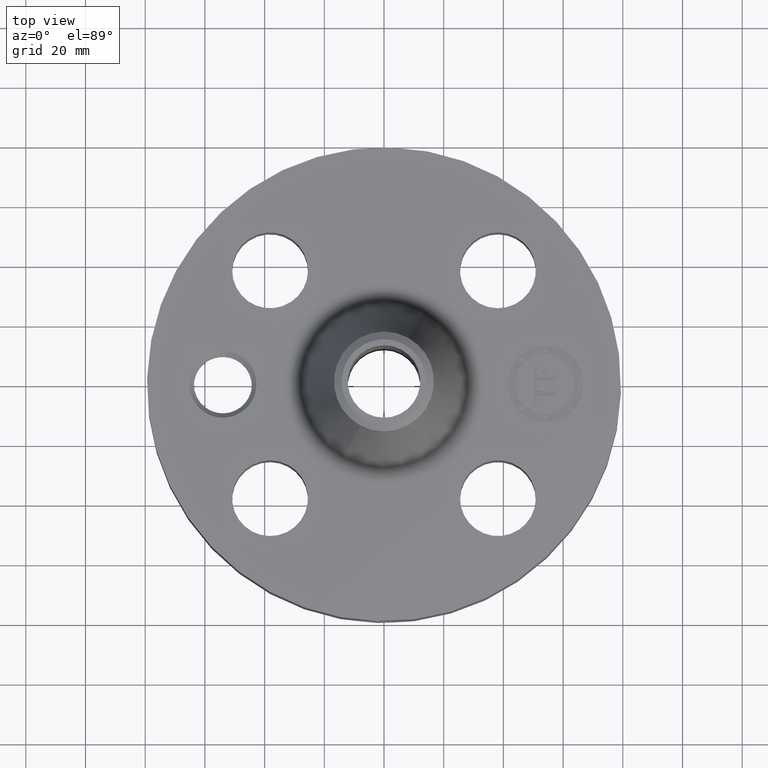
[diagram: clean part render]
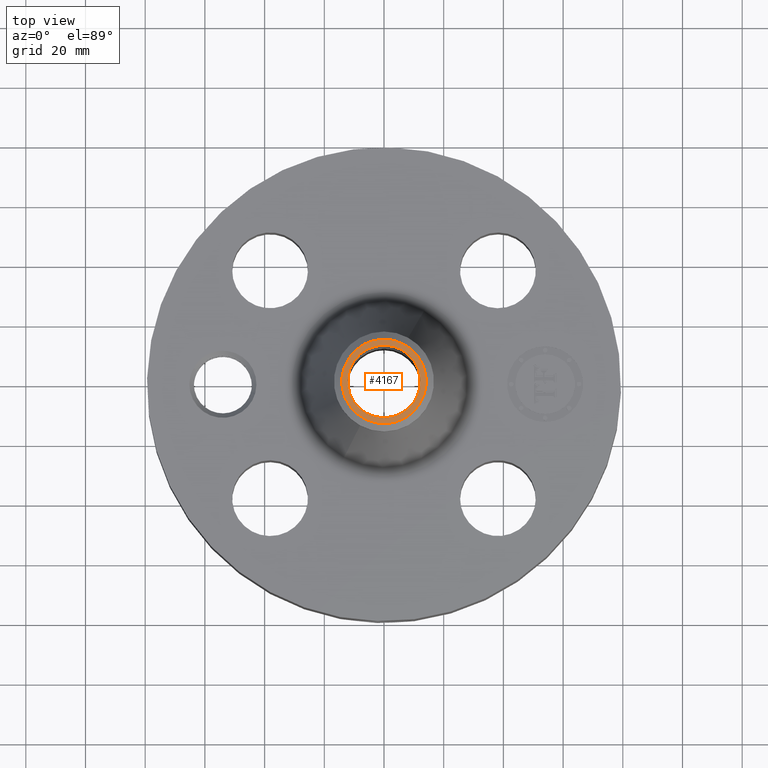
[diagram: same view with one face highlighted and labeled with its STEP entity id]
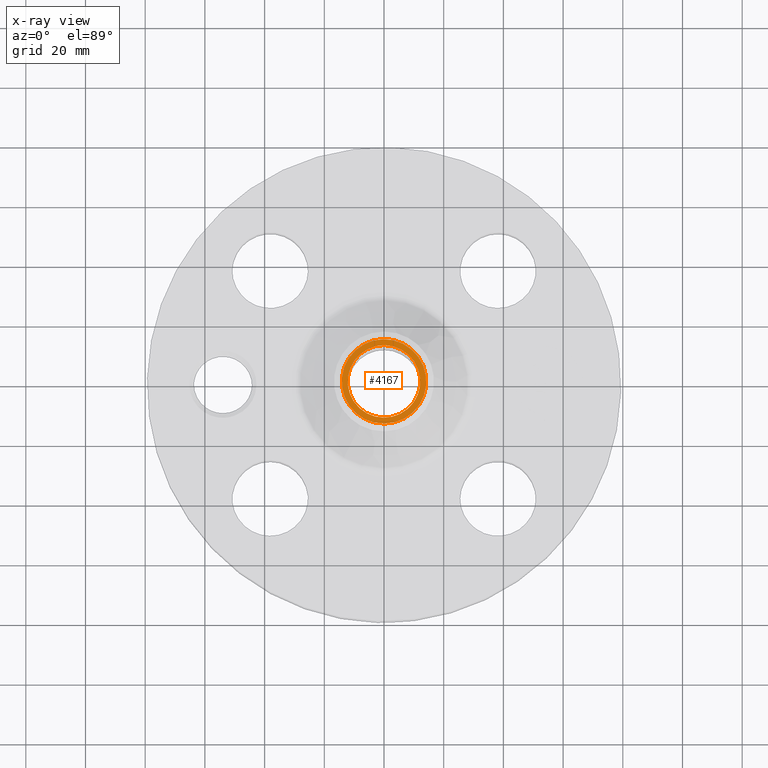
[diagram: x-ray of the same camera — body ghosted, the highlighted face saturated]
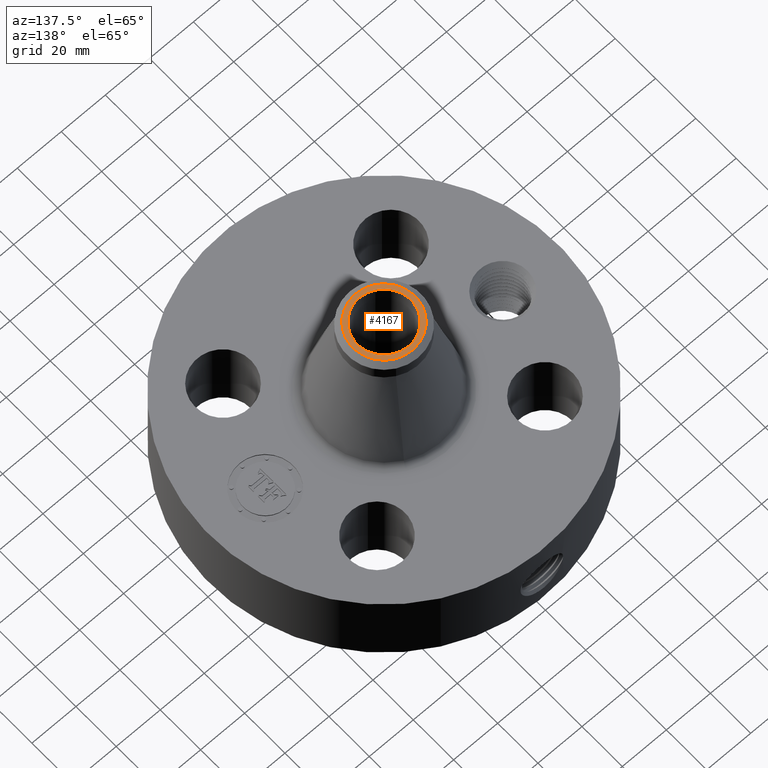
[diagram: same view with one face highlighted and labeled with its STEP entity id]
A machine part, top view. The second image highlights one B-rep face of the part: STEP entity #4167.
The next image is the same camera in x-ray: the body ghosted, the highlighted face saturated — about 0% of this face is hidden behind the body in this view.
A second angle (auxiliary view) of the same face is appended — the face is thin or edge-on in the first view.
In plain terms, the highlighted planar face has unit normal (0, 0, -1).
Its self-contained STEP definition (entity closure, byte-faithful):
#2898=AXIS2_PLACEMENT_3D('Circle Axis2P3D',#2896,#2897,$) ;
#2966=AXIS2_PLACEMENT_3D('Circle Axis2P3D',#2964,#2965,$) ;
#4143=AXIS2_PLACEMENT_3D('Plane Axis2P3D',#4140,#4141,#4142) ;
#4147=AXIS2_PLACEMENT_3D('Circle Axis2P3D',#4145,#4146,$) ;
#4156=AXIS2_PLACEMENT_3D('Circle Axis2P3D',#4154,#4155,$) ;
#2896=CARTESIAN_POINT('Axis2P3D Location',(0.,0.,3.87000000002)) ;
#2900=CARTESIAN_POINT('Vertex',(0.229405120223,0.419923255866,3.87000000002)) ;
#2902=CARTESIAN_POINT('Vertex',(-0.229405120223,-0.419923255866,3.87000000002)) ;
#2964=CARTESIAN_POINT('Axis2P3D Location',(0.,0.,3.87000000002)) ;
#4140=CARTESIAN_POINT('Axis2P3D Location',(0.,0.660000000003,3.87000000002)) ;
#4145=CARTESIAN_POINT('Axis2P3D Location',(0.,0.,3.87000000002)) ;
#4149=CARTESIAN_POINT('Vertex',(0.267155162633,-0.489024244991,3.87000000002)) ;
#4151=CARTESIAN_POINT('Vertex',(-0.267155162633,0.489024244991,3.87000000002)) ;
#4154=CARTESIAN_POINT('Axis2P3D Location',(0.,0.,3.87000000002)) ;
#2897=DIRECTION('Axis2P3D Direction',(0.,0.,-0.0393700787402)) ;
#2965=DIRECTION('Axis2P3D Direction',(0.,0.,-0.0393700787402)) ;
#4141=DIRECTION('Axis2P3D Direction',(0.,0.,-0.0393700787402)) ;
#4142=DIRECTION('Axis2P3D XDirection',(0.0393700787402,0.,0.)) ;
#4146=DIRECTION('Axis2P3D Direction',(0.,0.,-0.0393700787402)) ;
#4155=DIRECTION('Axis2P3D Direction',(0.,0.,-0.0393700787402)) ;
#4160=ORIENTED_EDGE('',*,*,#4153,.T.) ;
#4161=ORIENTED_EDGE('',*,*,#4158,.T.) ;
#4164=ORIENTED_EDGE('',*,*,#2968,.T.) ;
#4165=ORIENTED_EDGE('',*,*,#2904,.T.) ;
#4166=FACE_BOUND('',#4163,.T.) ;
#4167=ADVANCED_FACE('PartBody',(#4162,#4166),#4144,.F.) ;
#2899=CIRCLE('generated circle',#2898,0.478500000002) ;
#2967=CIRCLE('generated circle',#2966,0.478500000002) ;
#4148=CIRCLE('generated circle',#4147,0.557240157482) ;
#4157=CIRCLE('generated circle',#4156,0.557240157482) ;
#2904=EDGE_CURVE('',#2901,#2903,#2899,.T.) ;
#2968=EDGE_CURVE('',#2903,#2901,#2967,.T.) ;
#4153=EDGE_CURVE('',#4150,#4152,#4148,.F.) ;
#4158=EDGE_CURVE('',#4152,#4150,#4157,.F.) ;
#4159=EDGE_LOOP('',(#4160,#4161)) ;
#4163=EDGE_LOOP('',(#4164,#4165)) ;
#4162=FACE_OUTER_BOUND('',#4159,.T.) ;
#4144=PLANE('',#4143) ;
#2901=VERTEX_POINT('',#2900) ;
#2903=VERTEX_POINT('',#2902) ;
#4150=VERTEX_POINT('',#4149) ;
#4152=VERTEX_POINT('',#4151) ;